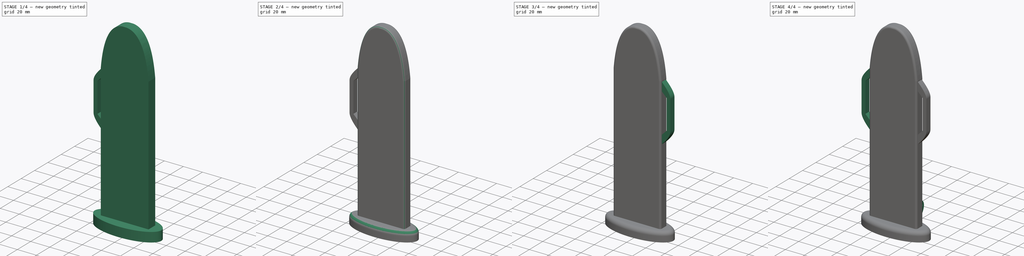
[diagram: build sequence overview — one tinted view per stage of 4, left to right]
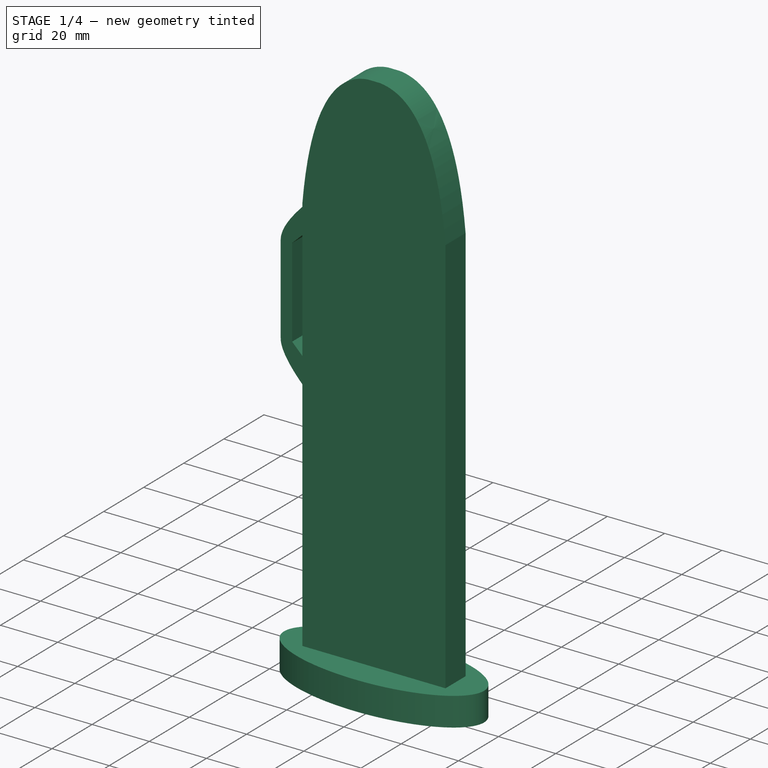
[diagram: stage 1 of 4 — iso view after this stage's code; geometry added in this stage tinted green]
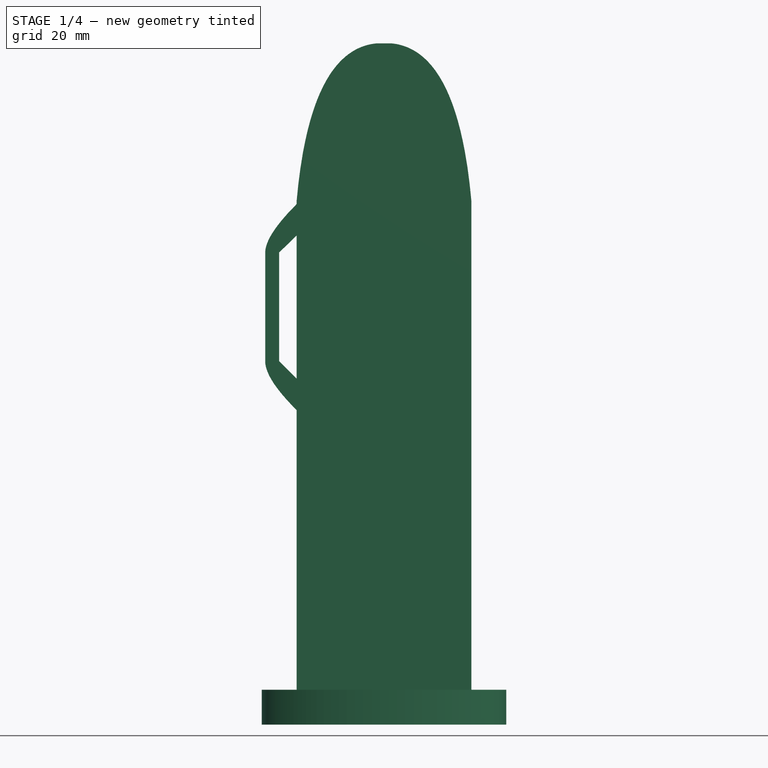
[diagram: stage 1 of 4 — front view after this stage's code; geometry added in this stage tinted green]
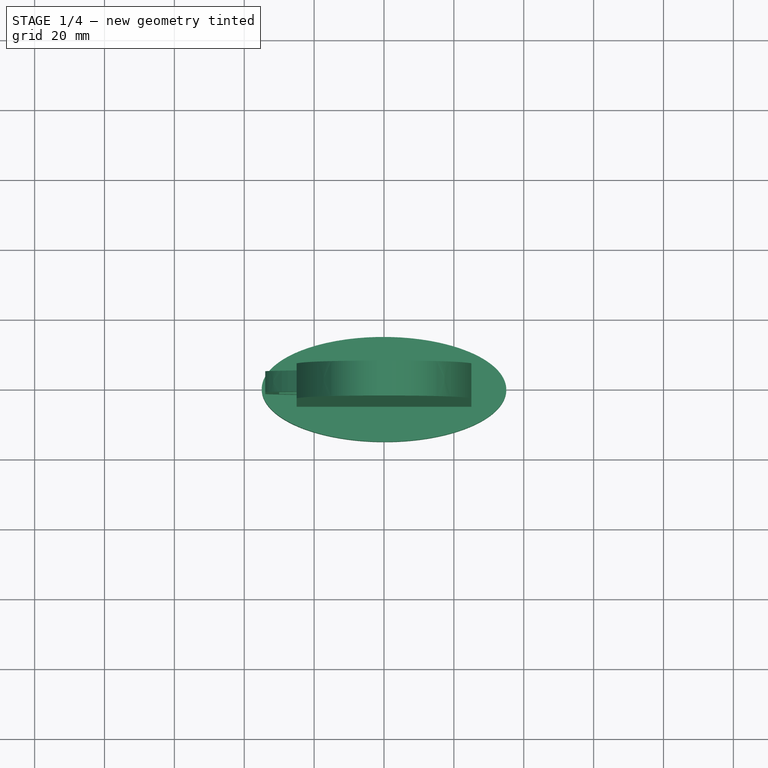
[diagram: stage 1 of 4 — top view after this stage's code; geometry added in this stage tinted green]
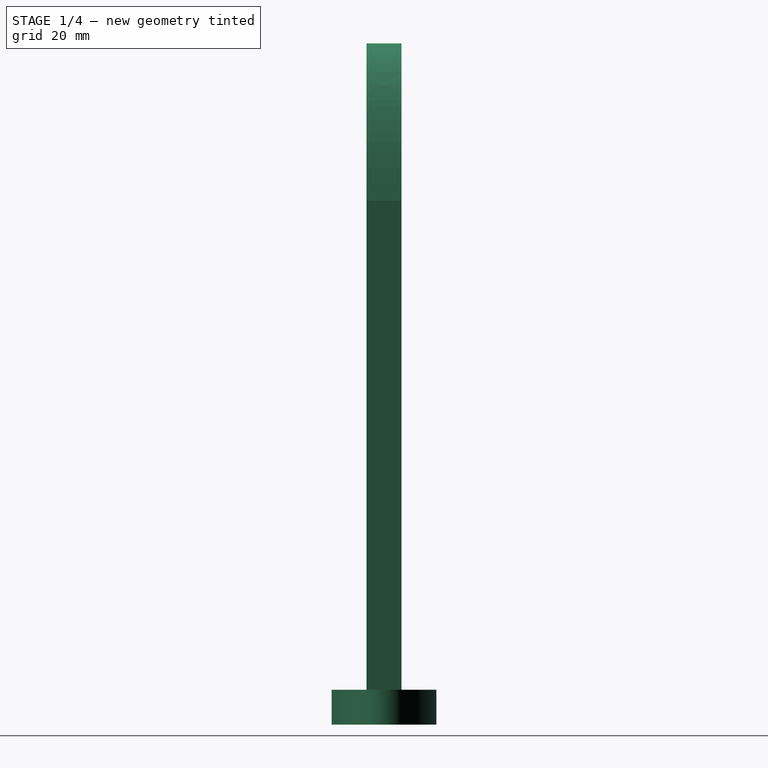
[diagram: stage 1 of 4 — right view after this stage's code; geometry added in this stage tinted green]
FCSTD DOCUMENT  (FreeCAD 0.21R33668 +26 (Git))
Label: ножни Рома 4
License: All rights reserved
LicenseURL: http://en.wikipedia.org/wiki/All_rights_reserved
objects: Sketcher::SketchObject×7, PartDesign::Pad×4, PartDesign::Fillet×4, PartDesign::Pocket×3, PartDesign::Body×3, Part::Mirroring×1, PartDesign::Mirrored×1, Part::MultiFuse×1
note: 35 computed .brp shape members not serialized (recipe doc carries the construction recipe); baked Part::Feature solids carry a one-line shape summary decoded from their .brp

FEATURE [Sketcher::SketchObject] Sketch  label="корпус"
  FullyConstrained = false
  MapMode = 5
  Placement = pos=(0,0,0) rot=(1,0,0;1.5708rad)
  Support = -> [XZ_Plane]
  sketch-geometry (24):
    g0: GeomPoint X=-25 Y=149.965 Z=0
    g1: GeomPoint X=25 Y=149.965 Z=0
    g2: GeomPoint X=-2.07022 Y=195 Z=0
    g3: GeomPoint X=2.07022 Y=195 Z=0
    g4: GeomPoint X=-21.1146 Y=193.241 Z=0
    g5: GeomPoint X=21.1146 Y=193.241 Z=0
    g6: GeomPoint X=-25 Y=0 Z=0
    g7: GeomPoint X=25 Y=0 Z=0
    g8: LineSegment StartX=-25 StartY=149.965 StartZ=0 EndX=-25 EndY=0 EndZ=0
    g9: LineSegment StartX=25 StartY=149.965 StartZ=0 EndX=25 EndY=0 EndZ=0
    g10: LineSegment StartX=-2.07022 StartY=195 StartZ=0 EndX=2.07022 EndY=195 EndZ=0
    g11: LineSegment StartX=-25 StartY=0 StartZ=0 EndX=25 EndY=0 EndZ=0
    g12: Circle CenterX=-2.07022 CenterY=195 CenterZ=0 NormalX=0 NormalY=0 NormalZ=1 AngleXU=0 Radius=1
    g13: Circle CenterX=-21.1146 CenterY=193.241 CenterZ=0 NormalX=0 NormalY=0 NormalZ=1 AngleXU=0 Radius=1
    g14: Circle CenterX=-25 CenterY=149.965 CenterZ=0 NormalX=0 NormalY=0 NormalZ=1 AngleXU=0 Radius=1
    g15: BSplineCurve PolesCount=3 KnotsCount=2 Degree=2 IsPeriodic=0
    g16: GeomPoint X=-2.07022 Y=195 Z=0
    g17: GeomPoint X=-25 Y=149.965 Z=0
    g18: Circle CenterX=2.07022 CenterY=195 CenterZ=0 NormalX=0 NormalY=0 NormalZ=1 AngleXU=0 Radius=1
    g19: Circle CenterX=21.1146 CenterY=193.241 CenterZ=0 NormalX=0 NormalY=0 NormalZ=1 AngleXU=0 Radius=1
    g20: Circle CenterX=25 CenterY=149.965 CenterZ=0 NormalX=0 NormalY=0 NormalZ=1 AngleXU=0 Radius=1
    g21: BSplineCurve PolesCount=3 KnotsCount=2 Degree=2 IsPeriodic=0
    g22: GeomPoint X=2.07022 Y=195 Z=0
    g23: GeomPoint X=25 Y=149.965 Z=0
  constraints (39):
    c: Symmetric(g2,g3,g-2)
    c: Symmetric(g0,g1,g-2)
    c: Symmetric(g4,g5,g-2)
    c: PointOnObject(g6,g-1)
    c: PointOnObject(g7,g-1)
    c: Coincident(g8,g0)
    c: Coincident(g8,g6)
    c: Coincident(g9,g1)
    c: Coincident(g9,g7)
    c: Vertical(g8)
    c: Vertical(g9)
    c: Coincident(g10,g2)
    c: Coincident(g10,g3)
    c: Coincident(g11,g8)
    c: Coincident(g11,g9)
    c: DistanceX(g8,g9) = 50
    c: Weight(g12) = 1
    c: Coincident(g15,g10)
    c: Equal(g12,g13)
    c: Coincident(g13,g4)
    c: Equal(g12,g14)
    c: Coincident(g15,g8)
    c: InternalAlignment(g12,g15)
    c: InternalAlignment(g13,g15)
    c: InternalAlignment(g14,g15)
    c: InternalAlignment(g16,g15)
    c: InternalAlignment(g17,g15)
    c: Weight(g18) = 1
    c: Coincident(g21,g10)
    c: Equal(g18,g19)
    c: Coincident(g19,g5)
    c: Equal(g18,g20)
    c: Coincident(g21,g9)
    c: InternalAlignment(g18,g21)
    c: InternalAlignment(g19,g21)
    c: InternalAlignment(g20,g21)
    c: InternalAlignment(g22,g21)
    c: InternalAlignment(g23,g21)
    c: DistanceY(g9,g10) = 195
FEATURE [PartDesign::Pad] Pad
  Direction = (0,-1,-2e-16)
  Length = 10
  Length2 = 10
  Midplane = true
  Placement = pos=(0,0,0) rot=(1,0,0;1.5708rad)
  Profile = -> Sketch
  ReferenceAxis = -> Sketch [N_Axis]
  Type = 0
FEATURE [Sketcher::SketchObject] Sketch001  label="юбка"
  FullyConstrained = false
  MapMode = 5
  Support = -> [XY_Plane]
  sketch-geometry (5):
    g0: Ellipse CenterX=0 CenterY=0 CenterZ=0 NormalX=0 NormalY=0 NormalZ=1 MajorRadius=35.0001 MinorRadius=15.0001 AngleXU=-0.00292345
    g1: LineSegment StartX=35 StartY=-0.102321 StartZ=0 EndX=-35 EndY=0.102321 EndZ=0
    g2: LineSegment StartX=0.0438518 StartY=15 StartZ=0 EndX=-0.0438518 EndY=-15 EndZ=0
    g3: GeomPoint X=31.6228 Y=-0.0924478 Z=0
    g4: GeomPoint X=-31.6228 Y=0.0924478 Z=0
  constraints (4):
    c: InternalAlignment(g1-g4 -> g0) x4
    c: Coincident(g0,g-1)
    c: DistanceX(g1,g1) = 70
    c: DistanceY(g2,g2) = 30
FEATURE [PartDesign::Pad] Pad001
  BaseFeature = -> Pad
  Direction = (0,0,1)
  Length = 10
  Length2 = 10
  Placement = pos=(0,0,0) rot=(1,0,0;1.5708rad)
  Profile = -> Sketch001
  ReferenceAxis = -> Sketch001 [N_Axis]
  Type = 0
FEATURE [Sketcher::SketchObject] Sketch002  label="отвір для леза"
  FullyConstrained = true
  MapMode = 5
  Placement = pos=(0,0,0) rot=(1,0,0;3.14159rad)
  sketch-geometry (5):
    g0: LineSegment StartX=-20 StartY=1.785 StartZ=0 EndX=-20 EndY=-1.785 EndZ=0
    g1: LineSegment StartX=-20 StartY=-1.785 StartZ=0 EndX=20 EndY=-1.785 EndZ=0
    g2: LineSegment StartX=20 StartY=-1.785 StartZ=0 EndX=20 EndY=1.785 EndZ=0
    g3: LineSegment StartX=20 StartY=1.785 StartZ=0 EndX=-20 EndY=1.785 EndZ=0
    g4: GeomPoint X=0 Y=0 Z=0
  constraints (12):
    c: Coincident(g0,g1)
    c: Coincident(g1,g2)
    c: Coincident(g2,g3)
    c: Coincident(g3,g0)
    c: Horizontal(g1)
    c: Horizontal(g3)
    c: Vertical(g0)
    c: Vertical(g2)
    c: Symmetric(g1,g0,g4)
    c: DistanceX(g3,g3) = 40
    c: Coincident(g-1,g4)
    c: DistanceY(g1,g2) = 3.57
FEATURE [PartDesign::Pocket] Pocket
  BaseFeature = -> Pad001
  Direction = (0,1e-15,1)
  Length = 175
  Length2 = 5
  Placement = pos=(0,0,0) rot=(1,0,0;1.5708rad)
  Profile = -> Sketch002
  ReferenceAxis = -> Sketch002 [N_Axis]
  Type = 0
FEATURE [Sketcher::SketchObject] Sketch006  label="проушина"
  FullyConstrained = false
  MapMode = 5
  Placement = pos=(0,0,0) rot=(1,0,0;1.5708rad)
  Support = -> [XZ_Plane002]
  sketch-geometry (28):
    g0: GeomPoint X=-25 Y=149 Z=0
    g1: GeomPoint X=-34 Y=140 Z=0
    g2: GeomPoint X=-34 Y=135.066 Z=0
    g3: GeomPoint X=-34 Y=104 Z=0
    g4: GeomPoint X=-34 Y=99 Z=0
    g5: GeomPoint X=-25 Y=90 Z=0
    g6: Circle CenterX=-25 CenterY=149 CenterZ=0 NormalX=0 NormalY=0 NormalZ=1 AngleXU=0 Radius=1
    g7: Circle CenterX=-34 CenterY=140 CenterZ=0 NormalX=0 NormalY=0 NormalZ=1 AngleXU=0 Radius=1
    g8: Circle CenterX=-34 CenterY=135.066 CenterZ=0 NormalX=0 NormalY=0 NormalZ=1 AngleXU=0 Radius=1
    g9: BSplineCurve PolesCount=3 KnotsCount=2 Degree=2 IsPeriodic=0
    g10: GeomPoint X=-25 Y=149 Z=0
    g11: GeomPoint X=-34 Y=135.066 Z=0
    g12: Circle CenterX=-25 CenterY=90 CenterZ=0 NormalX=0 NormalY=0 NormalZ=1 AngleXU=0 Radius=1
    g13: Circle CenterX=-34 CenterY=99 CenterZ=0 NormalX=0 NormalY=0 NormalZ=1 AngleXU=0 Radius=1
    g14: Circle CenterX=-34 CenterY=104 CenterZ=0 NormalX=0 NormalY=0 NormalZ=1 AngleXU=0 Radius=1
    g15: BSplineCurve PolesCount=3 KnotsCount=2 Degree=2 IsPeriodic=0
    g16: GeomPoint X=-25 Y=90 Z=0
    g17: GeomPoint X=-34 Y=104 Z=0
    g18: LineSegment StartX=-34 StartY=104 StartZ=0 EndX=-34 EndY=135.066 EndZ=0
    g19: GeomPoint X=-25 Y=140 Z=0
    g20: GeomPoint X=-30 Y=135.156 Z=0
    g21: GeomPoint X=-25 Y=99 Z=0
    g22: GeomPoint X=-30 Y=104 Z=0
    g23: LineSegment StartX=-25 StartY=149 StartZ=0 EndX=-25 EndY=140 EndZ=0
    g24: LineSegment StartX=-25 StartY=140 StartZ=0 EndX=-30 EndY=135.156 EndZ=0
    g25: LineSegment StartX=-30 StartY=135.156 StartZ=0 EndX=-30 EndY=104 EndZ=0
    g26: LineSegment StartX=-30 StartY=104 StartZ=0 EndX=-25 EndY=99 EndZ=0
    g27: LineSegment StartX=-25 StartY=99 StartZ=0 EndX=-25 EndY=90 EndZ=0
  constraints (38):
    c: Weight(g6) = 1
    c: Coincident(g9,g0)
    c: Equal(g6,g7)
    c: Coincident(g7,g1)
    c: Equal(g6,g8)
    c: Coincident(g9,g2)
    c: InternalAlignment(g6,g9)
    c: InternalAlignment(g7,g9)
    c: InternalAlignment(g8,g9)
    c: InternalAlignment(g10,g9)
    c: InternalAlignment(g11,g9)
    c: Weight(g12) = 1
    c: Coincident(g15,g5)
    c: Equal(g12,g13)
    c: Coincident(g13,g4)
    c: Equal(g12,g14)
    c: Coincident(g15,g3)
    c: InternalAlignment(g12,g15)
    c: InternalAlignment(g13,g15)
    c: InternalAlignment(g14,g15)
    c: InternalAlignment(g16,g15)
    c: InternalAlignment(g17,g15)
    c: Coincident(g18,g15)
    c: Coincident(g18,g9)
    c: Vertical(g18)
    c: Coincident(g23,g9)
    c: Coincident(g23,g19)
    c: Vertical(g23)
    c: Coincident(g24,g23)
    c: Coincident(g24,g20)
    c: Coincident(g25,g24)
    c: Coincident(g25,g22)
    c: Vertical(g25)
    c: Coincident(g26,g25)
    c: Coincident(g26,g21)
    c: Coincident(g27,g26)
    c: Coincident(g27,g15)
    c: Vertical(g27)
FEATURE [PartDesign::Pad] Pad003
  Direction = (0,-1,2e-16)
  Length = 6
  Length2 = 10
  Midplane = true
  Placement = pos=(0,0,0) rot=(1,0,0;1.5708rad)
  Profile = -> Sketch006
  ReferenceAxis = -> Sketch006 [N_Axis]
  Type = 0
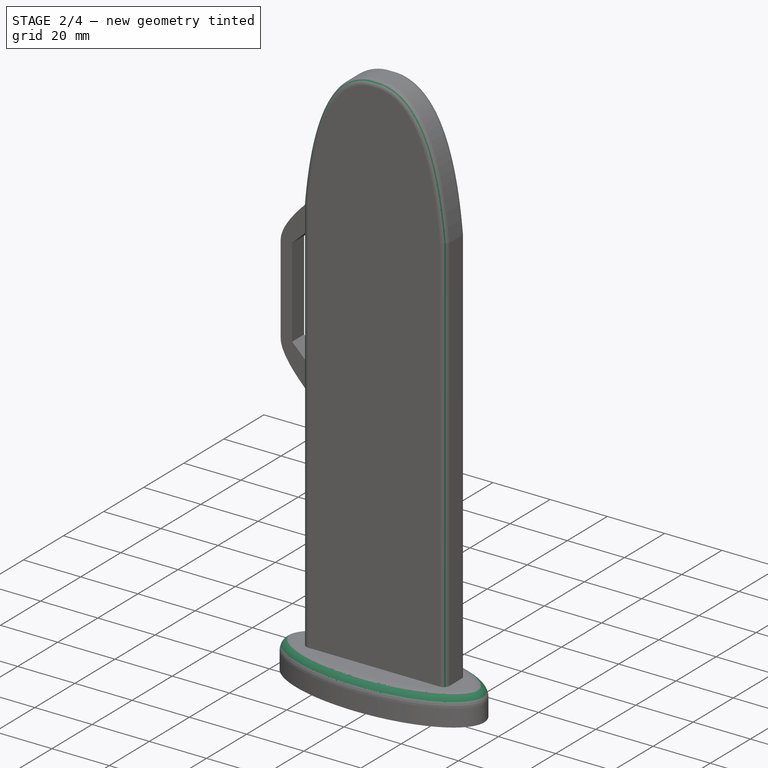
[diagram: stage 2 of 4 — iso view after this stage's code; geometry added in this stage tinted green]
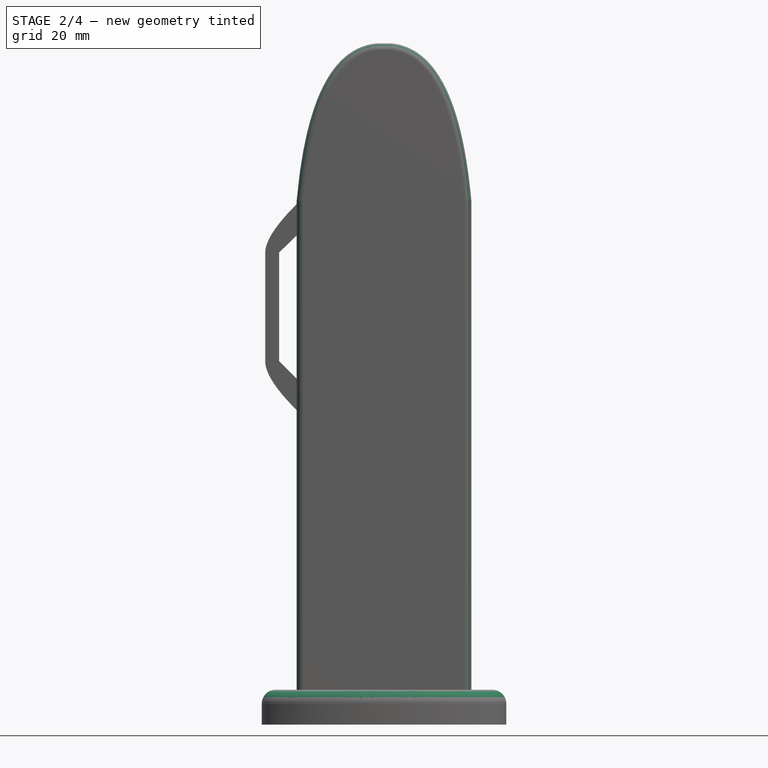
[diagram: stage 2 of 4 — front view after this stage's code; geometry added in this stage tinted green]
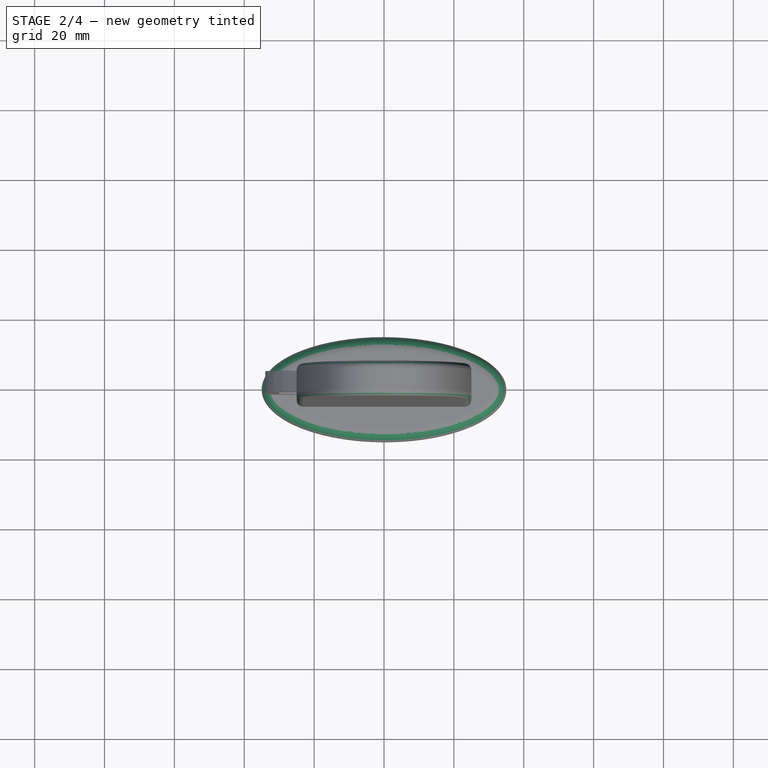
[diagram: stage 2 of 4 — top view after this stage's code; geometry added in this stage tinted green]
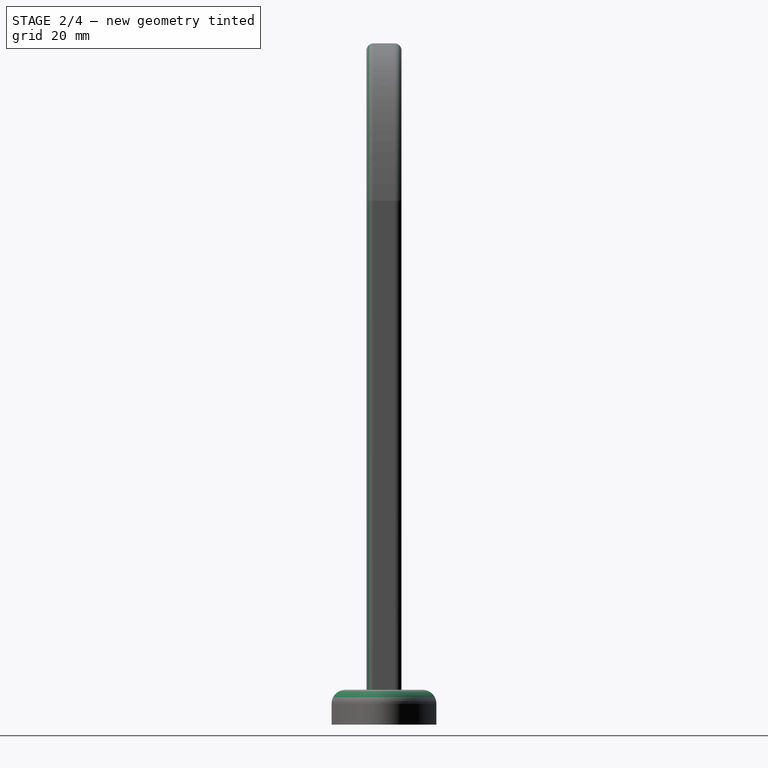
[diagram: stage 2 of 4 — right view after this stage's code; geometry added in this stage tinted green]
FEATURE [PartDesign::Fillet] Fillet
  Base = -> Pocket [Edge18]
  BaseFeature = -> Pocket
  Placement = pos=(0,0,0) rot=(1,0,0;1.5708rad)
  Radius = 4
  SupportTransform = false
  UseAllEdges = false
FEATURE [PartDesign::Fillet] Fillet001
  Base = -> Fillet [Edge39,Edge36]
  BaseFeature = -> Fillet
  Placement = pos=(0,0,0) rot=(1,0,0;1.5708rad)
  Radius = 5
  SupportTransform = false
  UseAllEdges = false
FEATURE [PartDesign::Fillet] Fillet002  label="фаска корпус зовні"
  Base = -> Fillet001 [Edge36,Edge39,Edge37,Edge42,Edge38,Edge43,Edge35,Edge41,Edge33,Edge32]
  BaseFeature = -> Fillet001
  Placement = pos=(0,0,0) rot=(1,0,0;1.5708rad)
  Radius = 2
  SupportTransform = false
  UseAllEdges = false
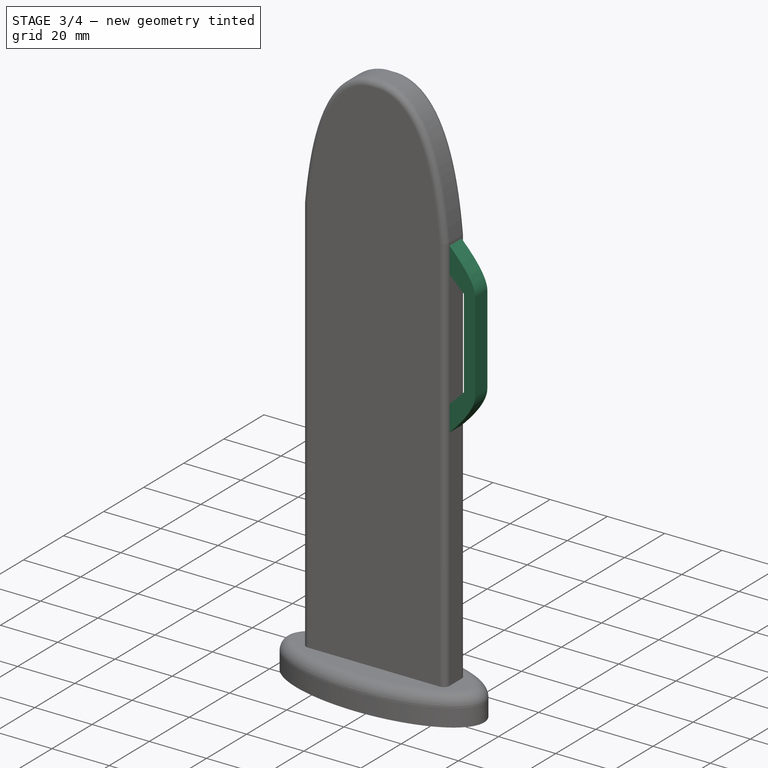
[diagram: stage 3 of 4 — iso view after this stage's code; geometry added in this stage tinted green]
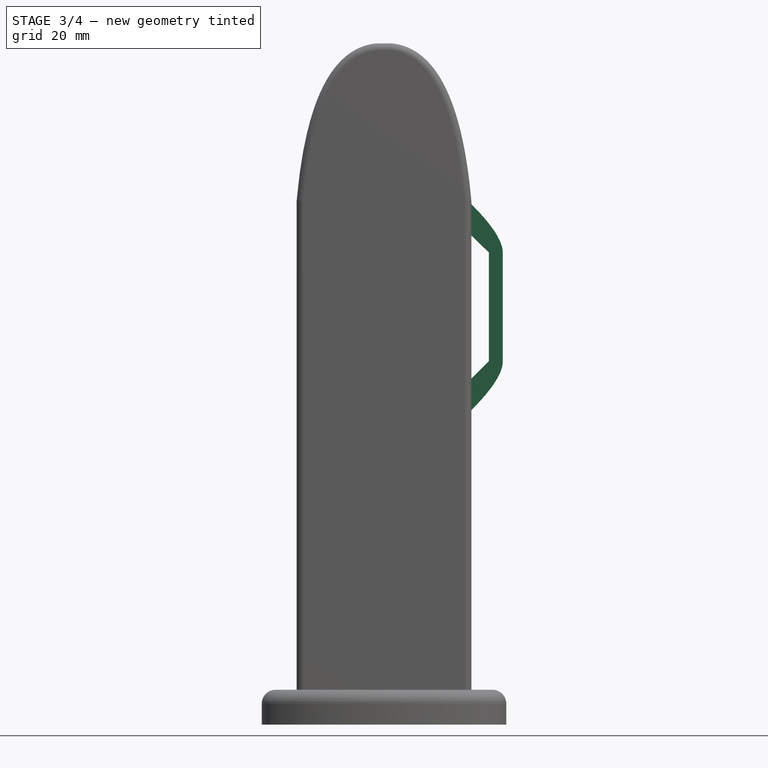
[diagram: stage 3 of 4 — front view after this stage's code; geometry added in this stage tinted green]
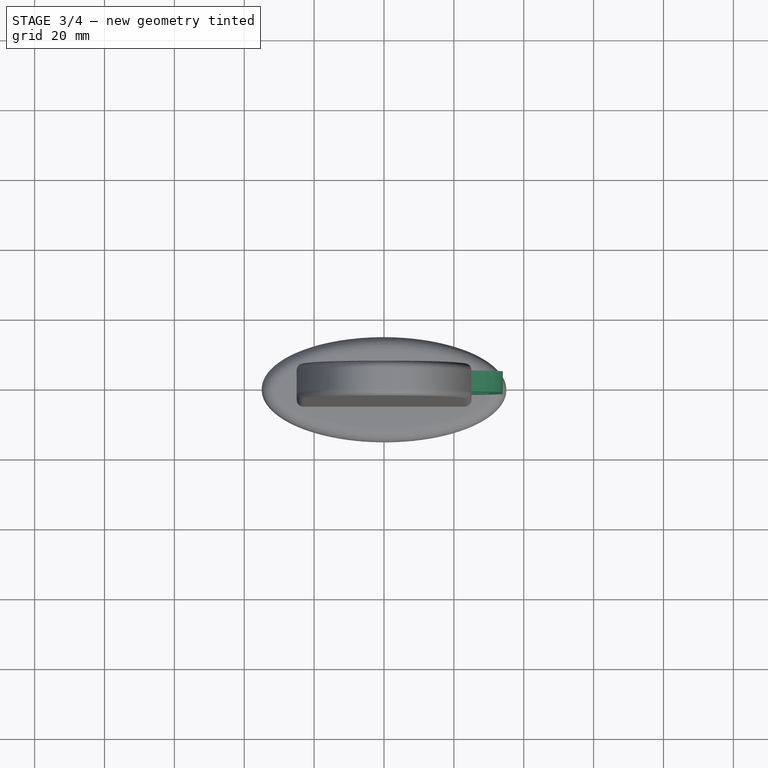
[diagram: stage 3 of 4 — top view after this stage's code; geometry added in this stage tinted green]
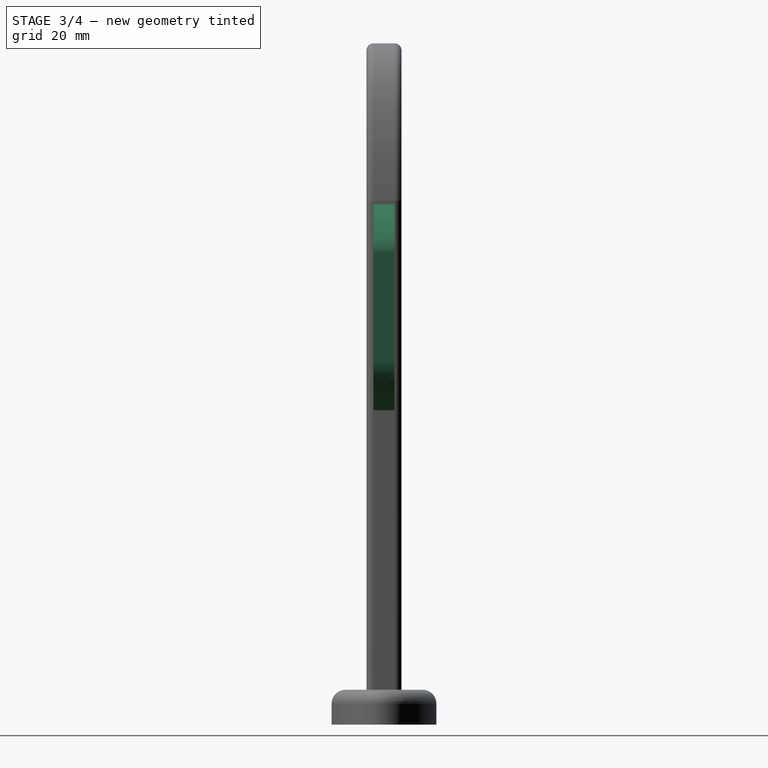
[diagram: stage 3 of 4 — right view after this stage's code; geometry added in this stage tinted green]
FEATURE [PartDesign::Fillet] Fillet003
  Base = -> Fillet002 [Edge59,Edge54,Edge61,Edge57]
  BaseFeature = -> Fillet002
  Placement = pos=(0,0,0) rot=(1,0,0;1.5708rad)
  Radius = 1
  SupportTransform = false
  UseAllEdges = false
FEATURE [Sketcher::SketchObject] Sketch003  label="пази для магніта"
  FullyConstrained = false
  MapMode = 5
  Placement = pos=(0,0,0) rot=(1,0,0;3.14159rad)
  Support = -> [Fillet002]
  sketch-geometry (8):
    g0: LineSegment StartX=-10.3593 StartY=10 StartZ=0 EndX=9.64067 EndY=10 EndZ=0
    g1: LineSegment StartX=9.64067 StartY=10 StartZ=0 EndX=9.64067 EndY=7 EndZ=0
    g2: LineSegment StartX=9.64067 StartY=7 StartZ=0 EndX=-10.3593 EndY=7 EndZ=0
    g3: LineSegment StartX=-10.3593 StartY=7 StartZ=0 EndX=-10.3593 EndY=10 EndZ=0
    g4: LineSegment StartX=-10.0598 StartY=-7 StartZ=0 EndX=9.94025 EndY=-7 EndZ=0
    g5: LineSegment StartX=9.94025 StartY=-7 StartZ=0 EndX=9.94025 EndY=-10 EndZ=0
    g6: LineSegment StartX=9.94025 StartY=-10 StartZ=0 EndX=-10.0598 EndY=-10 EndZ=0
    g7: LineSegment StartX=-10.0598 StartY=-10 StartZ=0 EndX=-10.0598 EndY=-7 EndZ=0
  constraints (22):
    c: Coincident(g0,g1)
    c: Coincident(g1,g2)
    c: Coincident(g2,g3)
    c: Coincident(g3,g0)
    c: Horizontal(g0)
    c: Horizontal(g2)
    c: Vertical(g1)
    c: Vertical(g3)
    c: Coincident(g4,g5)
    c: Coincident(g5,g6)
    c: Coincident(g6,g7)
    c: Coincident(g7,g4)
    c: Horizontal(g4)
    c: Horizontal(g6)
    c: Vertical(g5)
    c: Vertical(g7)
    c: DistanceY(g1,g1) = 3
    c: DistanceY(g5,g5) = 3
    c: DistanceX(g0,g0) = 20
    c: DistanceX(g4,g4) = 20
    c: DistanceY(g-1,g1) = 7
    c: DistanceY(g4,g-1) = 7
FEATURE [PartDesign::Pocket] Pocket001
  BaseFeature = -> Fillet003
  Direction = (0,0,1)
  Length = 4
  Length2 = 5
  Placement = pos=(0,0,0) rot=(1,0,0;1.5708rad)
  Profile = -> Sketch003
  ReferenceAxis = -> Sketch003 [N_Axis]
  Type = 0
FEATURE [PartDesign::Body] Body002  label="Проушина"
  Group = -> [Sketch006,Pad003]
  Origin = -> Origin002
  Tip = -> Pad003
FEATURE [PartDesign::Mirrored] Mirrored
  BaseFeature = -> Pocket001
  MirrorPlane = -> Sketch006 [V_Axis]
  Originals = -> [Pad003]
  Placement = pos=(0,0,0) rot=(1,0,0;1.5708rad)
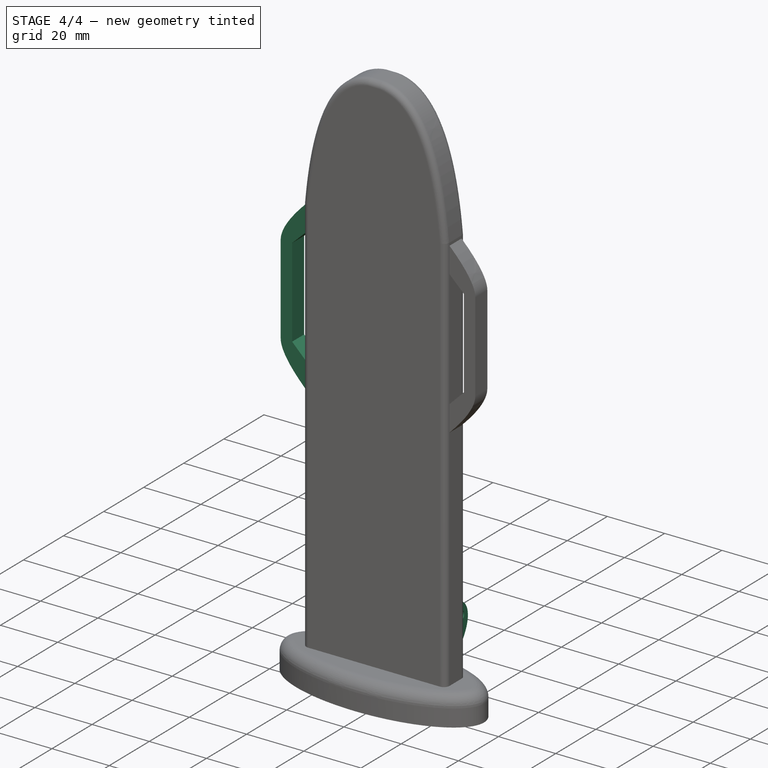
[diagram: stage 4 of 4 — iso view after this stage's code; geometry added in this stage tinted green]
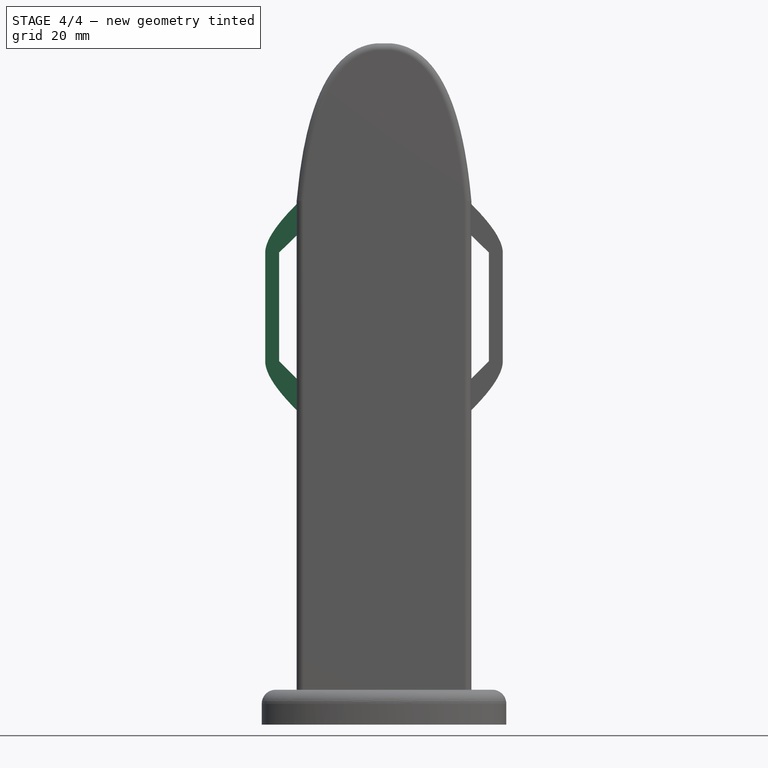
[diagram: stage 4 of 4 — front view after this stage's code; geometry added in this stage tinted green]
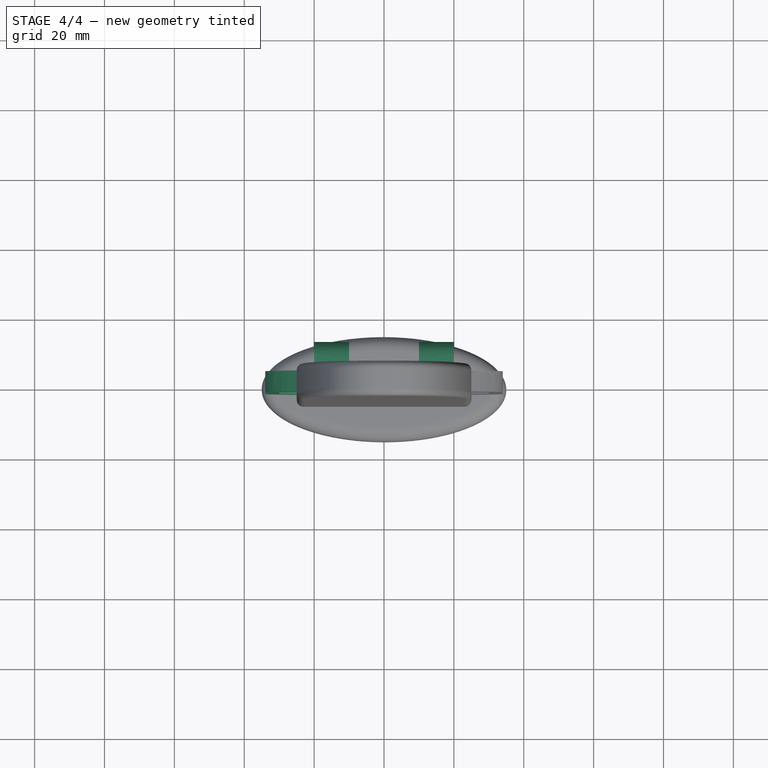
[diagram: stage 4 of 4 — top view after this stage's code; geometry added in this stage tinted green]
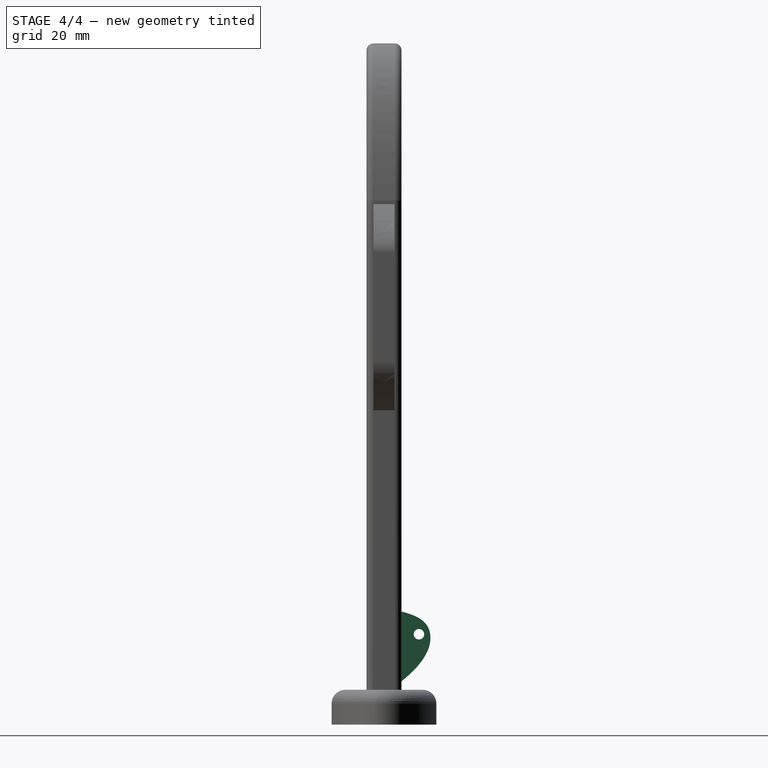
[diagram: stage 4 of 4 — right view after this stage's code; geometry added in this stage tinted green]
FEATURE [Sketcher::SketchObject] Sketch004  label="кріплкння"
  FullyConstrained = false
  MapMode = 5
  Placement = pos=(0,0,0) rot=(0.57735,0.57735,0.57735;2.0944rad)
  Support = -> [YZ_Plane001]
  sketch-geometry (13):
    g0: LineSegment StartX=4.97398 StartY=32.3884 StartZ=0 EndX=4.97398 EndY=12.3884 EndZ=0
    g1: GeomPoint X=12.0605 Y=18.0443 Z=0
    g2: GeomPoint X=15.1522 Y=26.8989 Z=0
    g3: GeomPoint X=10.5893 Y=31 Z=0
    g4-g8: Circle x5 (B-spline internal-alignment scaffolding for g9; pole/knot coordinates omitted)
    g9: BSplineCurve PolesCount=5 KnotsCount=3 Degree=3 IsPeriodic=0
    g10: GeomPoint X=4.97398 Y=32.3884 Z=0
    g11: GeomPoint X=13.2385 Y=25.7105 Z=0
    g12: GeomPoint X=4.97398 Y=12.3884 Z=0
  constraints (16):
    c: Vertical(g0)
    c: DistanceY(g0,g0) = 20
    c: Weight(g4) = 1
    c: Coincident(g9,g0)
    c: Equal(g4,g5)
    c: Coincident(g5,g3)
    c: Equal(g4,g6)
    c: Coincident(g6,g2)
    c: Equal(g4,g7)
    c: Coincident(g7,g1)
    c: Equal(g4,g8)
    c: Coincident(g9,g0)
    c: InternalAlignment(g4-g8 -> g9) x5
    c: InternalAlignment(g10,g9)
    c: InternalAlignment(g11,g9)
    c: InternalAlignment(g12,g9)
FEATURE [PartDesign::Pad] Pad002
  Direction = (1,-2e-16,3e-16)
  Length = 10
  Length2 = 10
  Placement = pos=(0,0,0) rot=(0.57735,0.57735,0.57735;2.0944rad)
  Profile = -> Sketch004
  ReferenceAxis = -> Sketch004 [N_Axis]
  Type = 0
FEATURE [Sketcher::SketchObject] Sketch005  label="отвір в уріплкнні"
  FullyConstrained = false
  MapMode = 5
  Placement = pos=(10,-2.2e-15,2.2e-15) rot=(0.57735,0.57735,0.57735;2.0944rad)
  Support = -> [Pad002]
  sketch-geometry (1):
    g0: Circle CenterX=10 CenterY=25.8817 CenterZ=0 NormalX=0 NormalY=0 NormalZ=1 AngleXU=0 Radius=1.5
  constraints (1):
    c: Diameter(g0) = 3
FEATURE [PartDesign::Pocket] Pocket002
  BaseFeature = -> Pad002
  Direction = (-1,4e-16,-4e-16)
  Length = 10
  Length2 = 5
  Placement = pos=(0,0,0) rot=(0.57735,0.57735,0.57735;2.0944rad)
  Profile = -> Sketch005
  ReferenceAxis = -> Sketch005 [N_Axis]
  Type = 0
FEATURE [PartDesign::Body] Body001  label="крепление"
  Group = -> [Sketch004,Pad002,Sketch005,Pocket002]
  Origin = -> Origin001
  Placement = pos=(10,0,0) rot=(0,0,1;0rad)
  Tip = -> Pocket002
FEATURE [Part::Mirroring] Part__Mirroring  label="крепление (Mirror #1)"
  Base = (1.90735e-06,10.3625,22.3884)
  Normal = (1,0,-1.19209e-07)
  Source = -> Body001
FEATURE [PartDesign::Body] Body  label="ножни"
  Group = -> [Sketch,Pad,Sketch001,Pad001,Sketch002,Pocket,Fillet,Fillet001,Fillet002,Fillet003,Sketch003,Pocket001,Mirrored]
  Origin = -> Origin
  Tip = -> Mirrored
FEATURE [Part::MultiFuse] Fusion
  Shapes = -> [Body,Body001,Part__Mirroring,Body002]
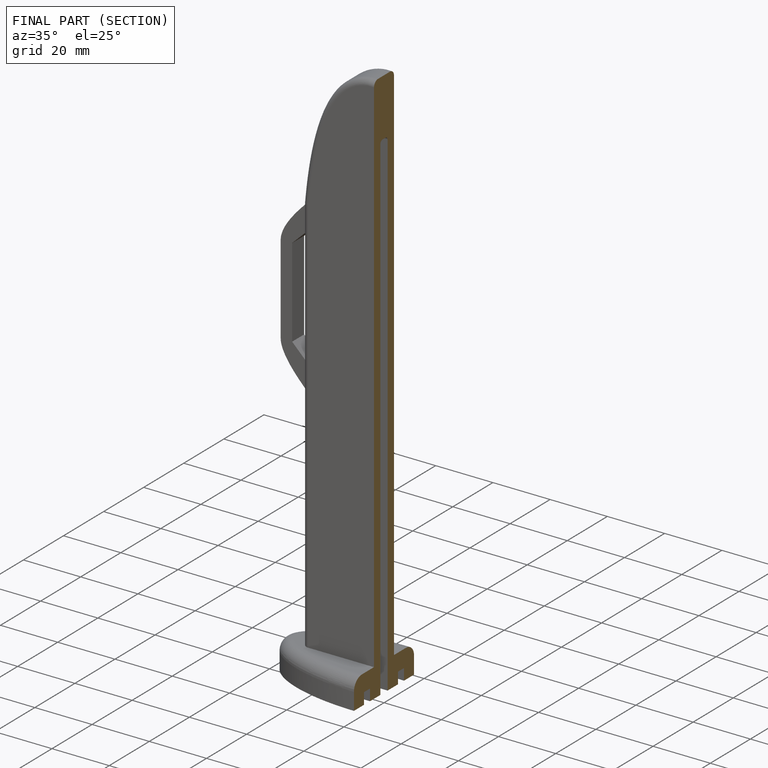
[diagram: finished part — half-section view (interior)]
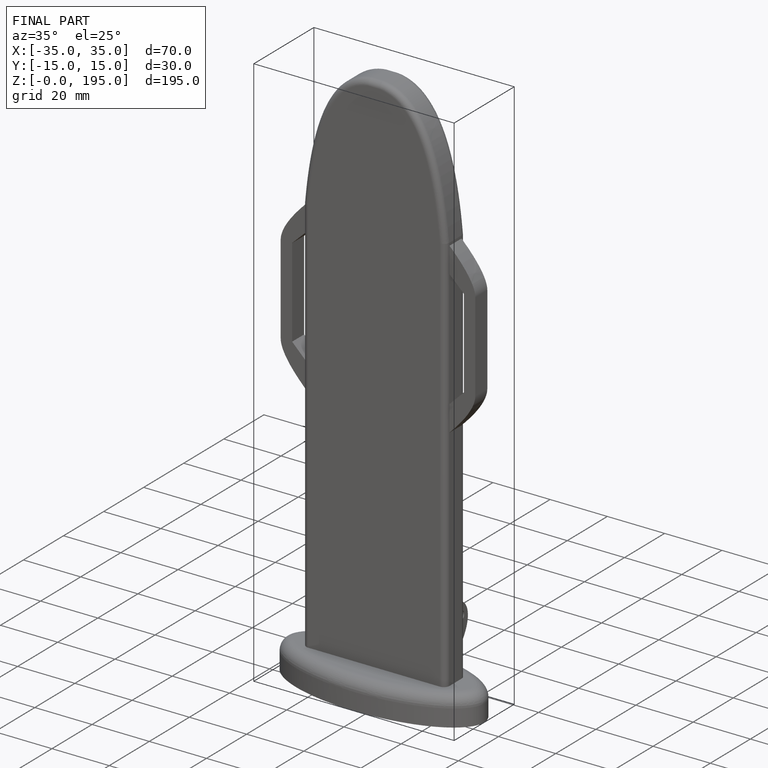
[diagram: finished part — iso view with bounding-box wireframe]
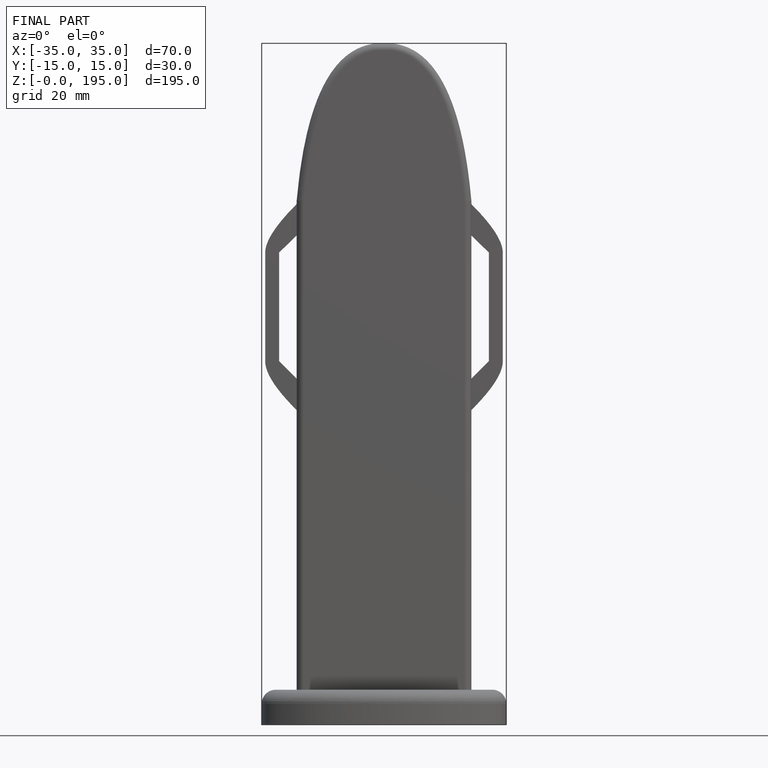
[diagram: finished part — front view with bounding-box wireframe]
